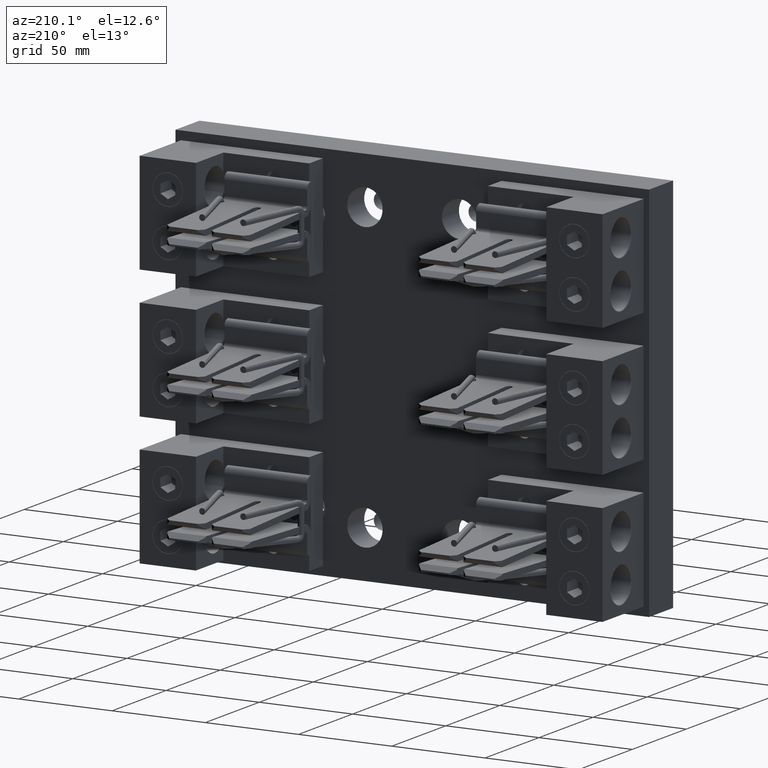
[diagram: clean part render]
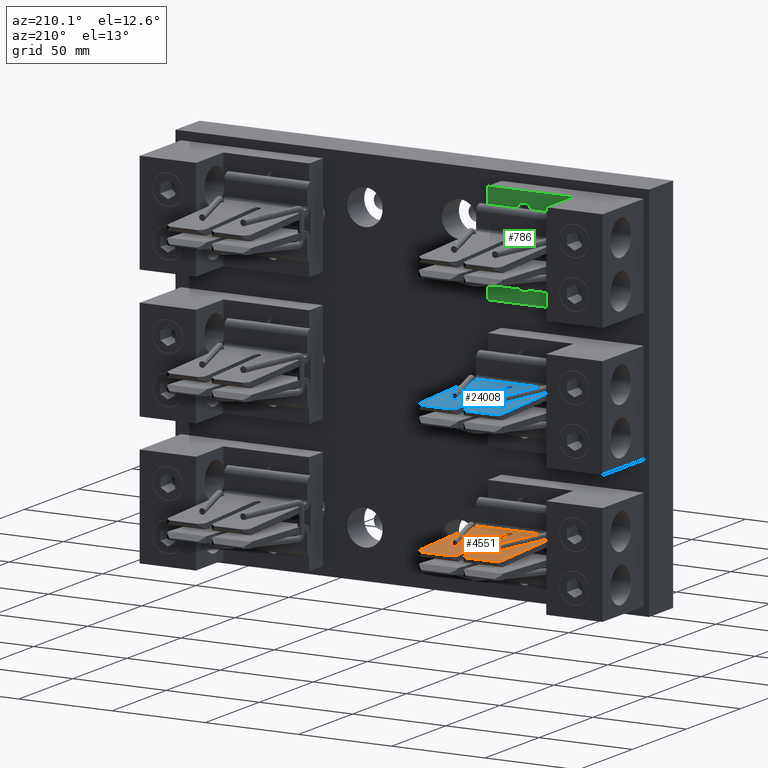
[diagram: same view with three faces highlighted in distinct colors, each labeled with its STEP entity id]
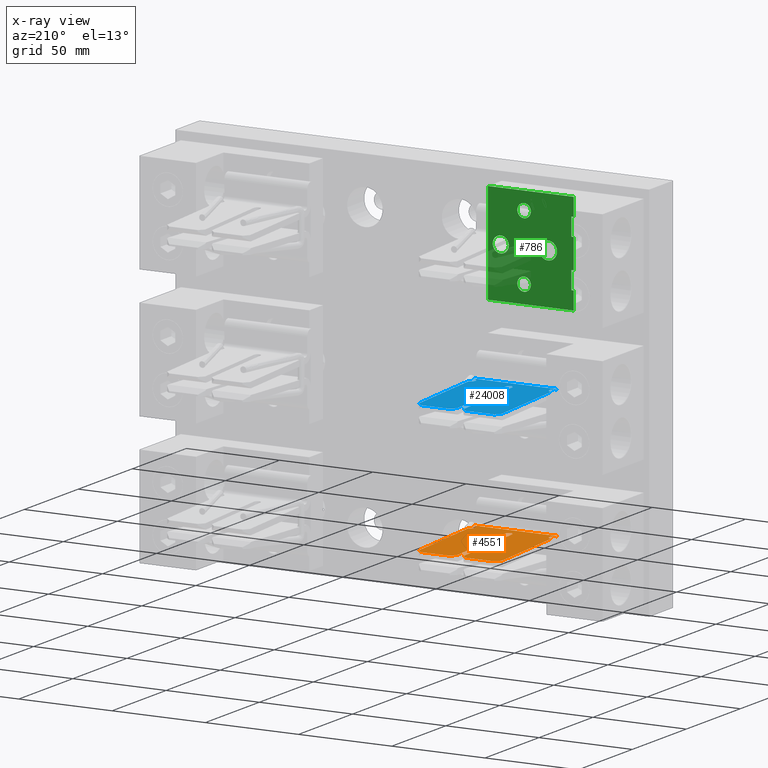
[diagram: x-ray of the same camera — body ghosted, the three highlighted faces saturated]
A machine part, auxiliary view with three faces highlighted in distinct colors.
The next image is the same camera in x-ray (body ghosted, the three faces saturated) — at least one of them is partly hidden behind the body in this view.
Their STEP definitions:

[orange] entity #4551 — the highlighted planar face has unit normal (0, -0.0353, -0.9994).
#245 = CARTESIAN_POINT ( 'NONE',  ( -2.589000000000000000, 1.940999999999998900, -2.501971949871025600 ) ) ;
#1052 = CARTESIAN_POINT ( 'NONE',  ( -1.783000000000000100, 1.717999999999998600, -2.494098468165789000 ) ) ;
#1670 = LINE ( 'NONE', #34000, #20389 ) ;
#2857 = VERTEX_POINT ( 'NONE', #13975 ) ;
#3214 = VECTOR ( 'NONE', #4346, 39.37007874015748900 ) ;
#3885 = DIRECTION ( 'NONE',  ( -0.7068865159459676300, -0.7068865159459634100, 0.02495810785192220000 ) ) ;
#3990 = CARTESIAN_POINT ( 'NONE',  ( -2.598957987920044800, 3.700042012079955100, -2.564078609516107700 ) ) ;
#4005 = VERTEX_POINT ( 'NONE', #31588 ) ;
#4346 = DIRECTION ( 'NONE',  ( 1.057645990178269900E-016, 0.9993772867383173800, -0.03528510665364423300 ) ) ;
#4431 = LINE ( 'NONE', #28275, #20753 ) ;
#4443 = CARTESIAN_POINT ( 'NONE',  ( -2.589000000000000000, 3.709999999999999500, -2.564430197120185700 ) ) ;
#4551 = ADVANCED_FACE ( 'NONE', ( #34755 ), #38266, .F. ) ;
#5030 = DIRECTION ( 'NONE',  ( -1.057645990178269900E-016, -0.9993772867383173800, 0.03528510665364423300 ) ) ;
#5163 = CARTESIAN_POINT ( 'NONE',  ( -3.532999999999999900, 1.905999999999999300, -2.500736201621324800 ) ) ;
#6257 = LINE ( 'NONE', #42943, #17320 ) ;
#6364 = ORIENTED_EDGE ( 'NONE', *, *, #17216, .F. ) ;
#6692 = ORIENTED_EDGE ( 'NONE', *, *, #13589, .T. ) ;
#6997 = DIRECTION ( 'NONE',  ( 1.000000000000000000, -1.045442921748446100E-016, 3.642919299551294900E-017 ) ) ;
#7356 = CARTESIAN_POINT ( 'NONE',  ( -3.532999999999999900, 1.685777038280819700, -2.492960769064513500 ) ) ;
#7755 = CARTESIAN_POINT ( 'NONE',  ( -2.826999999999999100, 3.809999999999999600, -2.567960906405045500 ) ) ;
#8280 = EDGE_LOOP ( 'NONE', ( #13249, #6692, #12503, #14906, #41181, #36066, #16482, #13754, #6364, #37327, #24131, #18209, #18637, #13642, #20983, #25361 ) ) ;
#8457 = VERTEX_POINT ( 'NONE', #22855 ) ;
#8875 = CARTESIAN_POINT ( 'NONE',  ( -1.782999999999999700, 3.809999999999999600, -2.567960906405045000 ) ) ;
#10125 = CARTESIAN_POINT ( 'NONE',  ( -2.727000000000000300, 3.710000000000000000, -2.564430197120185700 ) ) ;
#11027 = VECTOR ( 'NONE', #22438, 39.37007874015748900 ) ;
#11130 = VERTEX_POINT ( 'NONE', #19644 ) ;
#11261 = DIRECTION ( 'NONE',  ( -0.7068865159459645200, 0.7068865159459666300, -0.02495810785192235600 ) ) ;
#11654 = VERTEX_POINT ( 'NONE', #12465 ) ;
#11890 = LINE ( 'NONE', #25688, #39234 ) ;
#12465 = CARTESIAN_POINT ( 'NONE',  ( -1.882999999999999800, 3.809999999999999600, -2.567960906405045000 ) ) ;
#12503 = ORIENTED_EDGE ( 'NONE', *, *, #34283, .F. ) ;
#12642 = CARTESIAN_POINT ( 'NONE',  ( -1.971000000000000300, 1.717999999999999100, -2.494098468165789400 ) ) ;
#13198 = LINE ( 'NONE', #3990, #25239 ) ;
#13249 = ORIENTED_EDGE ( 'NONE', *, *, #31724, .T. ) ;
#13589 = EDGE_CURVE ( 'NONE', #35821, #11654, #17804, .T. ) ;
#13642 = ORIENTED_EDGE ( 'NONE', *, *, #35472, .T. ) ;
#13754 = ORIENTED_EDGE ( 'NONE', *, *, #37757, .T. ) ;
#13975 = CARTESIAN_POINT ( 'NONE',  ( -3.532999999999999900, 1.685777038280819700, -2.492960769064513500 ) ) ;
#14229 = EDGE_CURVE ( 'NONE', #32268, #16497, #13198, .T. ) ;
#14906 = ORIENTED_EDGE ( 'NONE', *, *, #14229, .T. ) ;
#14989 = VERTEX_POINT ( 'NONE', #33405 ) ;
#15064 = DIRECTION ( 'NONE',  ( -2.290156098585542100E-016, -0.9993772867383173800, 0.03528510665364424000 ) ) ;
#15632 = VECTOR ( 'NONE', #15897, 39.37007874015748100 ) ;
#15680 =( BOUNDED_CURVE ( )  B_SPLINE_CURVE ( 3, ( #30814, #34265, #43407, #43356 ),
 .UNSPECIFIED., .F., .F. ) 
 B_SPLINE_CURVE_WITH_KNOTS ( ( 4, 4 ),
 ( 0.0000000000000000000, 3.141592653589793100 ),
 .UNSPECIFIED. ) 
 CURVE ( )  GEOMETRIC_REPRESENTATION_ITEM ( )  RATIONAL_B_SPLINE_CURVE ( ( 1.000000000000000000, 0.3333333333333333700, 0.3333333333333333700, 1.000000000000000000 ) ) 
 REPRESENTATION_ITEM ( '' )  );
#15897 = DIRECTION ( 'NONE',  ( -0.7068865159459645200, 0.7068865159459667400, -0.02495810785192235900 ) ) ;
#15923 = CARTESIAN_POINT ( 'NONE',  ( -1.782999999999999700, 3.709999999999999100, -2.564430197120185700 ) ) ;
#16482 = ORIENTED_EDGE ( 'NONE', *, *, #43340, .T. ) ;
#16497 = VERTEX_POINT ( 'NONE', #4443 ) ;
#16547 = CARTESIAN_POINT ( 'NONE',  ( -1.882999999999999800, 3.809999999999999600, -2.567960906405045000 ) ) ;
#17023 = EDGE_CURVE ( 'NONE', #2857, #39173, #1670, .T. ) ;
#17216 = EDGE_CURVE ( 'NONE', #4005, #33303, #4431, .T. ) ;
#17320 = VECTOR ( 'NONE', #15064, 39.37007874015748100 ) ;
#17804 = LINE ( 'NONE', #16547, #15632 ) ;
#17824 = CARTESIAN_POINT ( 'NONE',  ( -3.540867345756414200, 3.702132654243584800, -2.564152424013092200 ) ) ;
#17982 = CARTESIAN_POINT ( 'NONE',  ( -3.532999999999999900, 1.717999999999999100, -2.494098468165789000 ) ) ;
#18209 = ORIENTED_EDGE ( 'NONE', *, *, #34417, .T. ) ;
#18637 = ORIENTED_EDGE ( 'NONE', *, *, #17023, .F. ) ;
#19187 = EDGE_CURVE ( 'NONE', #8457, #25247, #41096, .T. ) ;
#19644 = CARTESIAN_POINT ( 'NONE',  ( -1.783000000000000100, 1.685777038280819700, -2.492960769064513500 ) ) ;
#20075 = VERTEX_POINT ( 'NONE', #245 ) ;
#20389 = VECTOR ( 'NONE', #33634, 39.37007874015748900 ) ;
#20753 = VECTOR ( 'NONE', #29176, 39.37007874015748100 ) ;
#20983 = ORIENTED_EDGE ( 'NONE', *, *, #26128, .T. ) ;
#21387 = LINE ( 'NONE', #7356, #34030 ) ;
#22401 = CARTESIAN_POINT ( 'NONE',  ( -3.532999999999999900, 3.809999999999999600, -2.567960906405045500 ) ) ;
#22438 = DIRECTION ( 'NONE',  ( 1.057645990178269900E-016, 0.9993772867383173800, -0.03528510665364423300 ) ) ;
#22855 = CARTESIAN_POINT ( 'NONE',  ( -1.783000000000000100, 1.717999999999998600, -2.494098468165789000 ) ) ;
#23245 = LINE ( 'NONE', #22401, #11027 ) ;
#24131 = ORIENTED_EDGE ( 'NONE', *, *, #43404, .F. ) ;
#24439 = VERTEX_POINT ( 'NONE', #5163 ) ;
#24921 = VERTEX_POINT ( 'NONE', #10125 ) ;
#25098 = DIRECTION ( 'NONE',  ( 3.271765155450309700E-017, -0.03528510665364423300, -0.9993772867383173800 ) ) ;
#25239 = VECTOR ( 'NONE', #3885, 39.37007874015748900 ) ;
#25247 = VERTEX_POINT ( 'NONE', #43319 ) ;
#25361 = ORIENTED_EDGE ( 'NONE', *, *, #19187, .T. ) ;
#25372 = DIRECTION ( 'NONE',  ( -1.748641182290013800E-017, 0.9993772867383173800, -0.03528510665364424000 ) ) ;
#25655 = LINE ( 'NONE', #36147, #28345 ) ;
#25688 = CARTESIAN_POINT ( 'NONE',  ( -2.727000000000000300, 3.809999999999999600, -2.567960906405045500 ) ) ;
#26128 = EDGE_CURVE ( 'NONE', #11130, #8457, #30938, .T. ) ;
#26805 = CARTESIAN_POINT ( 'NONE',  ( -1.782999999999999700, 3.809999999999999600, -2.567960906405045000 ) ) ;
#26900 = DIRECTION ( 'NONE',  ( 1.057645990178269900E-016, 0.9993772867383173800, -0.03528510665364423300 ) ) ;
#26906 = CARTESIAN_POINT ( 'NONE',  ( -3.532999999999999900, 3.809999999999999600, -2.567960906405045500 ) ) ;
#27005 = EDGE_CURVE ( 'NONE', #16497, #20075, #6257, .T. ) ;
#27335 = CARTESIAN_POINT ( 'NONE',  ( -2.826999999999999100, 3.809999999999999600, -2.567960906405045500 ) ) ;
#28275 = CARTESIAN_POINT ( 'NONE',  ( -3.532999999999999900, 3.809999999999999600, -2.567960906405045500 ) ) ;
#28345 = VECTOR ( 'NONE', #41743, 39.37007874015748100 ) ;
#29176 = DIRECTION ( 'NONE',  ( 1.000000000000000000, -1.045442921748446100E-016, 3.642919299551294900E-017 ) ) ;
#29424 = CARTESIAN_POINT ( 'NONE',  ( -2.488999999999999000, 3.809999999999999600, -2.567960906405045000 ) ) ;
#29809 = LINE ( 'NONE', #8875, #3214 ) ;
#30309 = VECTOR ( 'NONE', #11261, 39.37007874015748900 ) ;
#30814 = CARTESIAN_POINT ( 'NONE',  ( -3.532999999999999900, 1.905999999999999300, -2.500736201621324800 ) ) ;
#30938 = LINE ( 'NONE', #26805, #31966 ) ;
#31324 = AXIS2_PLACEMENT_3D ( 'NONE', #26906, #25098, #5030 ) ;
#31588 = CARTESIAN_POINT ( 'NONE',  ( -3.432999999999998900, 3.809999999999999600, -2.567960906405045000 ) ) ;
#31724 = EDGE_CURVE ( 'NONE', #25247, #35821, #29809, .T. ) ;
#31966 = VECTOR ( 'NONE', #26900, 39.37007874015748900 ) ;
#32268 = VERTEX_POINT ( 'NONE', #29424 ) ;
#32874 = CARTESIAN_POINT ( 'NONE',  ( -2.726999999999999400, 1.940999999999998900, -2.501971949871025600 ) ) ;
#32926 = CARTESIAN_POINT ( 'NONE',  ( -2.726999999999999400, 1.802999999999999500, -2.497099571057919600 ) ) ;
#33288 = CARTESIAN_POINT ( 'NONE',  ( -2.589000000000000000, 1.802999999999999500, -2.497099571057919600 ) ) ;
#33303 = VERTEX_POINT ( 'NONE', #27335 ) ;
#33405 = CARTESIAN_POINT ( 'NONE',  ( -2.726999999999999400, 1.940999999999998900, -2.501971949871025600 ) ) ;
#33634 = DIRECTION ( 'NONE',  ( 1.057645990178269900E-016, 0.9993772867383173800, -0.03528510665364423300 ) ) ;
#34000 = CARTESIAN_POINT ( 'NONE',  ( -3.532999999999999900, 3.809999999999999600, -2.567960906405045500 ) ) ;
#34030 = VECTOR ( 'NONE', #6997, 39.37007874015748100 ) ;
#34265 = CARTESIAN_POINT ( 'NONE',  ( -3.344999999999999800, 1.905999999999999000, -2.500736201621324800 ) ) ;
#34283 = EDGE_CURVE ( 'NONE', #32268, #11654, #25655, .T. ) ;
#34417 = EDGE_CURVE ( 'NONE', #24439, #39173, #15680, .T. ) ;
#34712 = CARTESIAN_POINT ( 'NONE',  ( -2.589000000000000000, 1.940999999999998900, -2.501971949871025600 ) ) ;
#34755 = FACE_OUTER_BOUND ( 'NONE', #8280, .T. ) ;
#35472 = EDGE_CURVE ( 'NONE', #2857, #11130, #21387, .T. ) ;
#35821 = VERTEX_POINT ( 'NONE', #15923 ) ;
#36066 = ORIENTED_EDGE ( 'NONE', *, *, #41065, .T. ) ;
#36147 = CARTESIAN_POINT ( 'NONE',  ( -3.532999999999999900, 3.809999999999999600, -2.567960906405045500 ) ) ;
#36272 = CARTESIAN_POINT ( 'NONE',  ( -1.971000000000000300, 1.905999999999999000, -2.500736201621324800 ) ) ;
#36336 = DIRECTION ( 'NONE',  ( -0.7068865159459676300, -0.7068865159459634100, 0.02495810785192220000 ) ) ;
#37327 = ORIENTED_EDGE ( 'NONE', *, *, #41772, .T. ) ;
#37757 = EDGE_CURVE ( 'NONE', #24921, #33303, #41954, .T. ) ;
#38266 = PLANE ( 'NONE',  #31324 ) ;
#39173 = VERTEX_POINT ( 'NONE', #17982 ) ;
#39234 = VECTOR ( 'NONE', #25372, 39.37007874015748100 ) ;
#39739 = CARTESIAN_POINT ( 'NONE',  ( -3.532999999999999900, 3.710000000000000000, -2.564430197120185700 ) ) ;
#40625 = CARTESIAN_POINT ( 'NONE',  ( -1.783000000000000100, 1.905999999999999000, -2.500736201621324400 ) ) ;
#40778 =( BOUNDED_CURVE ( )  B_SPLINE_CURVE ( 3, ( #34712, #33288, #32926, #32874 ),
 .UNSPECIFIED., .F., .F. ) 
 B_SPLINE_CURVE_WITH_KNOTS ( ( 4, 4 ),
 ( 1.570796326794896600, 4.712388980384689700 ),
 .UNSPECIFIED. ) 
 CURVE ( )  GEOMETRIC_REPRESENTATION_ITEM ( )  RATIONAL_B_SPLINE_CURVE ( ( 1.000000000000000000, 0.3333333333333333700, 0.3333333333333333700, 1.000000000000000000 ) ) 
 REPRESENTATION_ITEM ( '' )  );
#41065 = EDGE_CURVE ( 'NONE', #20075, #14989, #40778, .T. ) ;
#41096 =( BOUNDED_CURVE ( )  B_SPLINE_CURVE ( 3, ( #1052, #12642, #36272, #40625 ),
 .UNSPECIFIED., .F., .T. ) 
 B_SPLINE_CURVE_WITH_KNOTS ( ( 4, 4 ),
 ( 3.141592653589793100, 6.283185307179586200 ),
 .UNSPECIFIED. ) 
 CURVE ( )  GEOMETRIC_REPRESENTATION_ITEM ( )  RATIONAL_B_SPLINE_CURVE ( ( 1.000000000000000000, 0.3333333333333333700, 0.3333333333333333700, 1.000000000000000000 ) ) 
 REPRESENTATION_ITEM ( '' )  );
#41181 = ORIENTED_EDGE ( 'NONE', *, *, #27005, .T. ) ;
#41537 = VECTOR ( 'NONE', #36336, 39.37007874015748900 ) ;
#41743 = DIRECTION ( 'NONE',  ( 1.000000000000000000, -1.045442921748446100E-016, 3.642919299551294900E-017 ) ) ;
#41772 = EDGE_CURVE ( 'NONE', #4005, #41783, #42396, .T. ) ;
#41783 = VERTEX_POINT ( 'NONE', #39739 ) ;
#41954 = LINE ( 'NONE', #7755, #30309 ) ;
#42396 = LINE ( 'NONE', #17824, #41537 ) ;
#42943 = CARTESIAN_POINT ( 'NONE',  ( -2.589000000000000000, 3.809999999999999600, -2.567960906405045500 ) ) ;
#43319 = CARTESIAN_POINT ( 'NONE',  ( -1.783000000000000100, 1.905999999999999000, -2.500736201621324400 ) ) ;
#43340 = EDGE_CURVE ( 'NONE', #14989, #24921, #11890, .T. ) ;
#43356 = CARTESIAN_POINT ( 'NONE',  ( -3.532999999999999900, 1.717999999999999100, -2.494098468165789000 ) ) ;
#43404 = EDGE_CURVE ( 'NONE', #24439, #41783, #23245, .T. ) ;
#43407 = CARTESIAN_POINT ( 'NONE',  ( -3.344999999999999800, 1.717999999999999500, -2.494098468165789400 ) ) ;

[blue] entity #24008 — the highlighted planar face has unit normal (0, -0.0353, -0.9994).
#626 = ORIENTED_EDGE ( 'NONE', *, *, #4752, .T. ) ;
#899 = CARTESIAN_POINT ( 'NONE',  ( -1.782999999999999700, 3.709999999999999100, 0.1855698028798141700 ) ) ;
#1550 = ORIENTED_EDGE ( 'NONE', *, *, #13455, .T. ) ;
#2288 = VECTOR ( 'NONE', #31416, 39.37007874015748100 ) ;
#2384 = DIRECTION ( 'NONE',  ( 1.057645990178269900E-016, 0.9993772867383173800, -0.03528510665364423300 ) ) ;
#2711 = VECTOR ( 'NONE', #2384, 39.37007874015748900 ) ;
#2821 = EDGE_CURVE ( 'NONE', #23342, #12853, #3496, .T. ) ;
#3470 = DIRECTION ( 'NONE',  ( 1.000000000000000000, -1.045442921748446100E-016, 3.642919299551294900E-017 ) ) ;
#3496 = LINE ( 'NONE', #20662, #33170 ) ;
#3690 = LINE ( 'NONE', #13430, #2711 ) ;
#3749 = CARTESIAN_POINT ( 'NONE',  ( -1.971000000000000300, 1.905999999999999000, 0.2492637983786751300 ) ) ;
#4189 = CARTESIAN_POINT ( 'NONE',  ( -3.532999999999999900, 1.905999999999999300, 0.2492637983786752100 ) ) ;
#4428 = CARTESIAN_POINT ( 'NONE',  ( -2.589000000000000000, 1.940999999999998900, 0.2480280501289742800 ) ) ;
#4466 = CARTESIAN_POINT ( 'NONE',  ( -1.783000000000000100, 1.905999999999999000, 0.2492637983786752400 ) ) ;
#4621 = LINE ( 'NONE', #19041, #7135 ) ;
#4752 = EDGE_CURVE ( 'NONE', #37328, #26794, #43092, .T. ) ;
#5166 = CARTESIAN_POINT ( 'NONE',  ( -2.826999999999999100, 3.809999999999999600, 0.1820390935949547400 ) ) ;
#5400 = CARTESIAN_POINT ( 'NONE',  ( -3.532999999999999900, 3.809999999999999600, 0.1820390935949547100 ) ) ;
#5773 = ORIENTED_EDGE ( 'NONE', *, *, #14872, .T. ) ;
#5814 = VECTOR ( 'NONE', #18426, 39.37007874015748100 ) ;
#5833 = EDGE_CURVE ( 'NONE', #22729, #40875, #18013, .T. ) ;
#5894 = LINE ( 'NONE', #5400, #13656 ) ;
#6739 = LINE ( 'NONE', #14763, #19227 ) ;
#7103 = CARTESIAN_POINT ( 'NONE',  ( -3.532999999999999900, 3.809999999999999600, 0.1820390935949547100 ) ) ;
#7135 = VECTOR ( 'NONE', #17185, 39.37007874015748900 ) ;
#7822 = VERTEX_POINT ( 'NONE', #30998 ) ;
#8416 = CARTESIAN_POINT ( 'NONE',  ( -1.783000000000000100, 1.717999999999998600, 0.2559015318342107700 ) ) ;
#8661 =( BOUNDED_CURVE ( )  B_SPLINE_CURVE ( 3, ( #23188, #32785, #3749, #15288 ),
 .UNSPECIFIED., .F., .T. ) 
 B_SPLINE_CURVE_WITH_KNOTS ( ( 4, 4 ),
 ( 3.141592653589793100, 6.283185307179586200 ),
 .UNSPECIFIED. ) 
 CURVE ( )  GEOMETRIC_REPRESENTATION_ITEM ( )  RATIONAL_B_SPLINE_CURVE ( ( 1.000000000000000000, 0.3333333333333333700, 0.3333333333333333700, 1.000000000000000000 ) ) 
 REPRESENTATION_ITEM ( '' )  );
#9009 = CARTESIAN_POINT ( 'NONE',  ( -2.589000000000000000, 3.709999999999999500, 0.1855698028798142600 ) ) ;
#9179 = DIRECTION ( 'NONE',  ( -0.7068865159459676300, -0.7068865159459634100, 0.02495810785192220000 ) ) ;
#10248 = CARTESIAN_POINT ( 'NONE',  ( -2.589000000000000000, 1.802999999999999500, 0.2529004289420800400 ) ) ;
#10277 = VERTEX_POINT ( 'NONE', #11794 ) ;
#10523 =( BOUNDED_CURVE ( )  B_SPLINE_CURVE ( 3, ( #4428, #10248, #16751, #18457 ),
 .UNSPECIFIED., .F., .T. ) 
 B_SPLINE_CURVE_WITH_KNOTS ( ( 4, 4 ),
 ( 1.570796326794896600, 4.712388980384689700 ),
 .UNSPECIFIED. ) 
 CURVE ( )  GEOMETRIC_REPRESENTATION_ITEM ( )  RATIONAL_B_SPLINE_CURVE ( ( 1.000000000000000000, 0.3333333333333333700, 0.3333333333333333700, 1.000000000000000000 ) ) 
 REPRESENTATION_ITEM ( '' )  );
#11227 = VERTEX_POINT ( 'NONE', #4189 ) ;
#11428 = LINE ( 'NONE', #7103, #14110 ) ;
#11794 = CARTESIAN_POINT ( 'NONE',  ( -2.727000000000000300, 3.710000000000000000, 0.1855698028798142300 ) ) ;
#11884 = DIRECTION ( 'NONE',  ( 1.057645990178269900E-016, 0.9993772867383173800, -0.03528510665364423300 ) ) ;
#12267 = LINE ( 'NONE', #28790, #16079 ) ;
#12830 = CARTESIAN_POINT ( 'NONE',  ( -3.532999999999999900, 1.685777038280819700, 0.2570392309354861400 ) ) ;
#12853 = VERTEX_POINT ( 'NONE', #26951 ) ;
#12966 = ORIENTED_EDGE ( 'NONE', *, *, #27642, .T. ) ;
#13262 = LINE ( 'NONE', #34788, #22311 ) ;
#13330 = EDGE_CURVE ( 'NONE', #7822, #22729, #40914, .T. ) ;
#13430 = CARTESIAN_POINT ( 'NONE',  ( -3.532999999999999900, 3.809999999999999600, 0.1820390935949547100 ) ) ;
#13455 = EDGE_CURVE ( 'NONE', #11227, #43303, #17611, .T. ) ;
#13656 = VECTOR ( 'NONE', #3470, 39.37007874015748100 ) ;
#14110 = VECTOR ( 'NONE', #19577, 39.37007874015748900 ) ;
#14402 = ORIENTED_EDGE ( 'NONE', *, *, #36316, .T. ) ;
#14763 = CARTESIAN_POINT ( 'NONE',  ( -1.782999999999999700, 3.809999999999999600, 0.1820390935949547700 ) ) ;
#14872 = EDGE_CURVE ( 'NONE', #12853, #17794, #32394, .T. ) ;
#14942 = EDGE_CURVE ( 'NONE', #37328, #16450, #13262, .T. ) ;
#15160 = ORIENTED_EDGE ( 'NONE', *, *, #31726, .F. ) ;
#15288 = CARTESIAN_POINT ( 'NONE',  ( -1.783000000000000100, 1.905999999999999000, 0.2492637983786752400 ) ) ;
#15626 = ORIENTED_EDGE ( 'NONE', *, *, #5833, .T. ) ;
#15685 = CARTESIAN_POINT ( 'NONE',  ( -3.432999999999998900, 3.809999999999999600, 0.1820390935949547700 ) ) ;
#16079 = VECTOR ( 'NONE', #23799, 39.37007874015748100 ) ;
#16450 = VERTEX_POINT ( 'NONE', #5166 ) ;
#16634 = VERTEX_POINT ( 'NONE', #899 ) ;
#16751 = CARTESIAN_POINT ( 'NONE',  ( -2.726999999999999400, 1.802999999999999500, 0.2529004289420800400 ) ) ;
#17185 = DIRECTION ( 'NONE',  ( -0.7068865159459645200, 0.7068865159459666300, -0.02495810785192235600 ) ) ;
#17611 =( BOUNDED_CURVE ( )  B_SPLINE_CURVE ( 3, ( #19596, #19393, #18831, #18724 ),
 .UNSPECIFIED., .F., .T. ) 
 B_SPLINE_CURVE_WITH_KNOTS ( ( 4, 4 ),
 ( 0.0000000000000000000, 3.141592653589793100 ),
 .UNSPECIFIED. ) 
 CURVE ( )  GEOMETRIC_REPRESENTATION_ITEM ( )  RATIONAL_B_SPLINE_CURVE ( ( 1.000000000000000000, 0.3333333333333333700, 0.3333333333333333700, 1.000000000000000000 ) ) 
 REPRESENTATION_ITEM ( '' )  );
#17794 = VERTEX_POINT ( 'NONE', #8416 ) ;
#17911 = FACE_OUTER_BOUND ( 'NONE', #36908, .T. ) ;
#18013 = LINE ( 'NONE', #31564, #2288 ) ;
#18426 = DIRECTION ( 'NONE',  ( -1.748641182290013800E-017, 0.9993772867383173800, -0.03528510665364424000 ) ) ;
#18457 = CARTESIAN_POINT ( 'NONE',  ( -2.726999999999999400, 1.940999999999998900, 0.2480280501289742800 ) ) ;
#18615 = CARTESIAN_POINT ( 'NONE',  ( -2.727000000000000300, 3.809999999999999600, 0.1820390935949547400 ) ) ;
#18724 = CARTESIAN_POINT ( 'NONE',  ( -3.532999999999999900, 1.717999999999999100, 0.2559015318342106600 ) ) ;
#18821 = ORIENTED_EDGE ( 'NONE', *, *, #32631, .T. ) ;
#18831 = CARTESIAN_POINT ( 'NONE',  ( -3.344999999999999800, 1.717999999999999500, 0.2559015318342103800 ) ) ;
#19041 = CARTESIAN_POINT ( 'NONE',  ( -2.826999999999999100, 3.809999999999999600, 0.1820390935949547400 ) ) ;
#19114 = EDGE_CURVE ( 'NONE', #17794, #20914, #8661, .T. ) ;
#19227 = VECTOR ( 'NONE', #39184, 39.37007874015748900 ) ;
#19393 = CARTESIAN_POINT ( 'NONE',  ( -3.344999999999999800, 1.905999999999999000, 0.2492637983786750400 ) ) ;
#19577 = DIRECTION ( 'NONE',  ( 1.057645990178269900E-016, 0.9993772867383173800, -0.03528510665364423300 ) ) ;
#19596 = CARTESIAN_POINT ( 'NONE',  ( -3.532999999999999900, 1.905999999999999300, 0.2492637983786752100 ) ) ;
#19841 = ORIENTED_EDGE ( 'NONE', *, *, #2821, .T. ) ;
#20662 = CARTESIAN_POINT ( 'NONE',  ( -3.532999999999999900, 1.685777038280819700, 0.2570392309354861400 ) ) ;
#20695 = VERTEX_POINT ( 'NONE', #27096 ) ;
#20914 = VERTEX_POINT ( 'NONE', #4466 ) ;
#22311 = VECTOR ( 'NONE', #34108, 39.37007874015748100 ) ;
#22729 = VERTEX_POINT ( 'NONE', #9009 ) ;
#23034 = DIRECTION ( 'NONE',  ( 1.000000000000000000, -1.045442921748446100E-016, 3.642919299551294900E-017 ) ) ;
#23188 = CARTESIAN_POINT ( 'NONE',  ( -1.783000000000000100, 1.717999999999998600, 0.2559015318342107700 ) ) ;
#23238 = CARTESIAN_POINT ( 'NONE',  ( -2.598957987920044800, 3.700042012079955100, 0.1859213904838924700 ) ) ;
#23300 = DIRECTION ( 'NONE',  ( -0.7068865159459676300, -0.7068865159459634100, 0.02495810785192220000 ) ) ;
#23342 = VERTEX_POINT ( 'NONE', #12830 ) ;
#23799 = DIRECTION ( 'NONE',  ( -0.7068865159459645200, 0.7068865159459667400, -0.02495810785192235900 ) ) ;
#23859 = ORIENTED_EDGE ( 'NONE', *, *, #31848, .F. ) ;
#24008 = ADVANCED_FACE ( 'NONE', ( #17911 ), #35585, .F. ) ;
#25236 = CARTESIAN_POINT ( 'NONE',  ( -2.726999999999999400, 1.940999999999998900, 0.2480280501289742800 ) ) ;
#25976 = LINE ( 'NONE', #18615, #5814 ) ;
#26498 = ORIENTED_EDGE ( 'NONE', *, *, #14942, .F. ) ;
#26602 = VECTOR ( 'NONE', #11884, 39.37007874015748900 ) ;
#26794 = VERTEX_POINT ( 'NONE', #39862 ) ;
#26916 = CARTESIAN_POINT ( 'NONE',  ( -3.532999999999999900, 1.717999999999999100, 0.2559015318342106600 ) ) ;
#26951 = CARTESIAN_POINT ( 'NONE',  ( -1.783000000000000100, 1.685777038280819700, 0.2570392309354863100 ) ) ;
#27096 = CARTESIAN_POINT ( 'NONE',  ( -1.882999999999999800, 3.809999999999999600, 0.1820390935949547700 ) ) ;
#27642 = EDGE_CURVE ( 'NONE', #34189, #10277, #25976, .T. ) ;
#28790 = CARTESIAN_POINT ( 'NONE',  ( -1.882999999999999800, 3.809999999999999600, 0.1820390935949547700 ) ) ;
#29272 = ORIENTED_EDGE ( 'NONE', *, *, #19114, .T. ) ;
#30998 = CARTESIAN_POINT ( 'NONE',  ( -2.488999999999999000, 3.809999999999999600, 0.1820390935949547700 ) ) ;
#31416 = DIRECTION ( 'NONE',  ( -2.290156098585542100E-016, -0.9993772867383173800, 0.03528510665364424000 ) ) ;
#31564 = CARTESIAN_POINT ( 'NONE',  ( -2.589000000000000000, 3.809999999999999600, 0.1820390935949547400 ) ) ;
#31726 = EDGE_CURVE ( 'NONE', #7822, #20695, #5894, .T. ) ;
#31848 = EDGE_CURVE ( 'NONE', #23342, #43303, #11428, .T. ) ;
#32394 = LINE ( 'NONE', #34846, #26602 ) ;
#32631 = EDGE_CURVE ( 'NONE', #20914, #16634, #6739, .T. ) ;
#32785 = CARTESIAN_POINT ( 'NONE',  ( -1.971000000000000300, 1.717999999999999100, 0.2559015318342104900 ) ) ;
#33170 = VECTOR ( 'NONE', #23034, 39.37007874015748100 ) ;
#33971 = CARTESIAN_POINT ( 'NONE',  ( -3.540867345756414200, 3.702132654243584800, 0.1858475759869078500 ) ) ;
#34108 = DIRECTION ( 'NONE',  ( 1.000000000000000000, -1.045442921748446100E-016, 3.642919299551294900E-017 ) ) ;
#34189 = VERTEX_POINT ( 'NONE', #25236 ) ;
#34403 = DIRECTION ( 'NONE',  ( -1.057645990178269900E-016, -0.9993772867383173800, 0.03528510665364423300 ) ) ;
#34547 = DIRECTION ( 'NONE',  ( 3.271765155450309700E-017, -0.03528510665364423300, -0.9993772867383173800 ) ) ;
#34581 = VECTOR ( 'NONE', #23300, 39.37007874015748900 ) ;
#34699 = CARTESIAN_POINT ( 'NONE',  ( -3.532999999999999900, 3.809999999999999600, 0.1820390935949547100 ) ) ;
#34788 = CARTESIAN_POINT ( 'NONE',  ( -3.532999999999999900, 3.809999999999999600, 0.1820390935949547100 ) ) ;
#34846 = CARTESIAN_POINT ( 'NONE',  ( -1.782999999999999700, 3.809999999999999600, 0.1820390935949547700 ) ) ;
#35141 = ORIENTED_EDGE ( 'NONE', *, *, #38076, .F. ) ;
#35368 = ORIENTED_EDGE ( 'NONE', *, *, #42894, .T. ) ;
#35585 = PLANE ( 'NONE',  #41752 ) ;
#36316 = EDGE_CURVE ( 'NONE', #16634, #20695, #12267, .T. ) ;
#36908 = EDGE_LOOP ( 'NONE', ( #18821, #14402, #15160, #41030, #15626, #38868, #12966, #35368, #26498, #626, #35141, #1550, #23859, #19841, #5773, #29272 ) ) ;
#37328 = VERTEX_POINT ( 'NONE', #15685 ) ;
#37963 = EDGE_CURVE ( 'NONE', #40875, #34189, #10523, .T. ) ;
#38076 = EDGE_CURVE ( 'NONE', #11227, #26794, #3690, .T. ) ;
#38868 = ORIENTED_EDGE ( 'NONE', *, *, #37963, .T. ) ;
#39184 = DIRECTION ( 'NONE',  ( 1.057645990178269900E-016, 0.9993772867383173800, -0.03528510665364423300 ) ) ;
#39862 = CARTESIAN_POINT ( 'NONE',  ( -3.532999999999999900, 3.710000000000000000, 0.1855698028798140900 ) ) ;
#40875 = VERTEX_POINT ( 'NONE', #42056 ) ;
#40914 = LINE ( 'NONE', #23238, #34581 ) ;
#41030 = ORIENTED_EDGE ( 'NONE', *, *, #13330, .T. ) ;
#41752 = AXIS2_PLACEMENT_3D ( 'NONE', #34699, #34547, #34403 ) ;
#42056 = CARTESIAN_POINT ( 'NONE',  ( -2.589000000000000000, 1.940999999999998900, 0.2480280501289742800 ) ) ;
#42377 = VECTOR ( 'NONE', #9179, 39.37007874015748900 ) ;
#42894 = EDGE_CURVE ( 'NONE', #10277, #16450, #4621, .T. ) ;
#43092 = LINE ( 'NONE', #33971, #42377 ) ;
#43303 = VERTEX_POINT ( 'NONE', #26916 ) ;

[green] entity #786 — the highlighted planar face has unit normal (-0, -1, -0).
#115 = FACE_BOUND ( 'NONE', #37260, .T. ) ;
#196 = CIRCLE ( 'NONE', #7101, 0.04999999999999973900 ) ;
#207 = CARTESIAN_POINT ( 'NONE',  ( -3.648000000000000600, 1.375000000000000000, 3.437082869338697200 ) ) ;
#742 = ORIENTED_EDGE ( 'NONE', *, *, #39979, .T. ) ;
#786 = ADVANCED_FACE ( 'NONE', ( #21299, #17036, #7462, #115, #39253, #13628 ), #9349, .F. ) ;
#1424 = VERTEX_POINT ( 'NONE', #23059 ) ;
#2572 = VECTOR ( 'NONE', #25951, 39.37007874015748100 ) ;
#3042 = ORIENTED_EDGE ( 'NONE', *, *, #15404, .F. ) ;
#3123 = VERTEX_POINT ( 'NONE', #43494 ) ;
#3178 = DIRECTION ( 'NONE',  ( -1.110223024625156300E-016, -1.612587646349660100E-016, 1.000000000000000000 ) ) ;
#3640 = LINE ( 'NONE', #36640, #26093 ) ;
#3823 = CARTESIAN_POINT ( 'NONE',  ( -3.648000000000001000, 1.374999999999999800, 3.814999999999999900 ) ) ;
#4361 = ORIENTED_EDGE ( 'NONE', *, *, #22996, .T. ) ;
#4962 = VECTOR ( 'NONE', #8504, 39.37007874015748100 ) ;
#4964 = DIRECTION ( 'NONE',  ( -1.117441600941660900E-016, -1.000000000000000000, -1.612587646349660600E-016 ) ) ;
#4971 = CARTESIAN_POINT ( 'NONE',  ( -2.650000000000000400, 1.375000000000000000, 2.061999999999999800 ) ) ;
#5712 = VERTEX_POINT ( 'NONE', #34513 ) ;
#6351 = ORIENTED_EDGE ( 'NONE', *, *, #29578, .T. ) ;
#6926 = DIRECTION ( 'NONE',  ( 1.000000000000000000, 0.0000000000000000000, 0.0000000000000000000 ) ) ;
#6943 = LINE ( 'NONE', #30261, #35288 ) ;
#7101 = AXIS2_PLACEMENT_3D ( 'NONE', #17403, #24542, #7762 ) ;
#7387 = VERTEX_POINT ( 'NONE', #37255 ) ;
#7462 = FACE_BOUND ( 'NONE', #18815, .T. ) ;
#7502 = VERTEX_POINT ( 'NONE', #207 ) ;
#7762 = DIRECTION ( 'NONE',  ( -1.000000000000000000, 0.0000000000000000000, 0.0000000000000000000 ) ) ;
#7854 = DIRECTION ( 'NONE',  ( -1.000000000000000000, 1.117441600941660900E-016, -1.110223024625156300E-016 ) ) ;
#8267 = CARTESIAN_POINT ( 'NONE',  ( -3.698000000000000400, 1.374999999999999800, 3.814999999999999900 ) ) ;
#8329 = AXIS2_PLACEMENT_3D ( 'NONE', #8571, #8518, #8479 ) ;
#8479 = DIRECTION ( 'NONE',  ( 1.000000000000000000, -1.117441600941661100E-016, 1.110223024625156300E-016 ) ) ;
#8504 = DIRECTION ( 'NONE',  ( -1.000000000000000000, 1.117441600941660900E-016, -1.110223024625156300E-016 ) ) ;
#8518 = DIRECTION ( 'NONE',  ( -1.117441600941660900E-016, -1.000000000000000000, -1.612587646349660600E-016 ) ) ;
#8571 = CARTESIAN_POINT ( 'NONE',  ( -3.698000000000000400, 1.374999999999999800, 3.814999999999999900 ) ) ;
#9174 = CARTESIAN_POINT ( 'NONE',  ( -2.700000000000000200, 1.374999999999999800, 2.750000000000000000 ) ) ;
#9349 = PLANE ( 'NONE',  #8329 ) ;
#10795 = CARTESIAN_POINT ( 'NONE',  ( -1.886000000000000100, 1.375000000000000000, 1.684999999999999600 ) ) ;
#11145 = CIRCLE ( 'NONE', #24893, 0.1430000000000001000 ) ;
#11275 = VERTEX_POINT ( 'NONE', #17633 ) ;
#11491 = EDGE_CURVE ( 'NONE', #3123, #3123, #11145, .T. ) ;
#11764 = VECTOR ( 'NONE', #32660, 39.37007874015748100 ) ;
#11807 = EDGE_CURVE ( 'NONE', #7387, #43557, #33327, .T. ) ;
#11987 = ORIENTED_EDGE ( 'NONE', *, *, #42092, .F. ) ;
#12205 = ORIENTED_EDGE ( 'NONE', *, *, #11807, .T. ) ;
#12212 = LINE ( 'NONE', #32511, #11764 ) ;
#12452 = CARTESIAN_POINT ( 'NONE',  ( -4.886000000000001000, 1.375000000000000000, 3.062917130661303200 ) ) ;
#12659 = EDGE_CURVE ( 'NONE', #27756, #27756, #26552, .T. ) ;
#13295 = VERTEX_POINT ( 'NONE', #23818 ) ;
#13388 = VECTOR ( 'NONE', #25407, 39.37007874015748100 ) ;
#13550 = EDGE_LOOP ( 'NONE', ( #26972 ) ) ;
#13628 = FACE_OUTER_BOUND ( 'NONE', #41045, .T. ) ;
#13934 = VERTEX_POINT ( 'NONE', #41436 ) ;
#14367 = CIRCLE ( 'NONE', #17672, 0.1430000000000001000 ) ;
#14698 = DIRECTION ( 'NONE',  ( 1.000000000000000000, 0.0000000000000000000, 0.0000000000000000000 ) ) ;
#14777 = VECTOR ( 'NONE', #22126, 39.37007874015748100 ) ;
#14789 = DIRECTION ( 'NONE',  ( -1.117441600941660900E-016, -1.000000000000000000, -1.612587646349660600E-016 ) ) ;
#14848 = CARTESIAN_POINT ( 'NONE',  ( -2.650000000000000400, 1.374999999999999800, 3.437999999999999700 ) ) ;
#14923 = LINE ( 'NONE', #26674, #13388 ) ;
#15404 = EDGE_CURVE ( 'NONE', #7387, #27816, #39051, .T. ) ;
#16161 = AXIS2_PLACEMENT_3D ( 'NONE', #22913, #35471, #36511 ) ;
#16442 = EDGE_CURVE ( 'NONE', #13934, #13934, #14367, .T. ) ;
#16562 = EDGE_CURVE ( 'NONE', #11275, #31466, #42314, .T. ) ;
#17036 = FACE_BOUND ( 'NONE', #37538, .T. ) ;
#17403 = CARTESIAN_POINT ( 'NONE',  ( -2.650000000000000400, 1.374999999999999800, 2.750000000000000000 ) ) ;
#17437 = ORIENTED_EDGE ( 'NONE', *, *, #16442, .T. ) ;
#17484 = EDGE_CURVE ( 'NONE', #33824, #33824, #40322, .T. ) ;
#17506 = VECTOR ( 'NONE', #7854, 39.37007874015748100 ) ;
#17633 = CARTESIAN_POINT ( 'NONE',  ( -3.648000000000000600, 1.375000000000000000, 2.062917130661303200 ) ) ;
#17672 = AXIS2_PLACEMENT_3D ( 'NONE', #4971, #4964, #6926 ) ;
#18326 = DIRECTION ( 'NONE',  ( -1.000000000000000000, 0.0000000000000000000, 0.0000000000000000000 ) ) ;
#18381 = ORIENTED_EDGE ( 'NONE', *, *, #33949, .F. ) ;
#18382 = DIRECTION ( 'NONE',  ( 1.117441600941660900E-016, 1.000000000000000000, 1.612587646349660600E-016 ) ) ;
#18438 = CARTESIAN_POINT ( 'NONE',  ( -2.157999999999999900, 1.374999999999999800, 2.750000000000000000 ) ) ;
#18815 = EDGE_LOOP ( 'NONE', ( #27202 ) ) ;
#20269 = EDGE_CURVE ( 'NONE', #43557, #1424, #6943, .T. ) ;
#20275 = ORIENTED_EDGE ( 'NONE', *, *, #41834, .T. ) ;
#20645 = CARTESIAN_POINT ( 'NONE',  ( -3.648000000000001000, 1.374999999999999800, 3.814999999999999900 ) ) ;
#20996 = LINE ( 'NONE', #29845, #14777 ) ;
#21299 = FACE_BOUND ( 'NONE', #27121, .T. ) ;
#21799 = EDGE_CURVE ( 'NONE', #25762, #13295, #3640, .T. ) ;
#22126 = DIRECTION ( 'NONE',  ( 1.110223024625156300E-016, 1.612587646349660100E-016, -1.000000000000000000 ) ) ;
#22440 = ORIENTED_EDGE ( 'NONE', *, *, #11491, .T. ) ;
#22902 = CARTESIAN_POINT ( 'NONE',  ( -2.327499999999999700, 1.374999999999999800, 2.750000000000000000 ) ) ;
#22907 = AXIS2_PLACEMENT_3D ( 'NONE', #18438, #18382, #18326 ) ;
#22913 = CARTESIAN_POINT ( 'NONE',  ( -3.158000000000000400, 1.375000000000000000, 2.750000000000000000 ) ) ;
#22996 = EDGE_CURVE ( 'NONE', #27873, #7502, #34688, .T. ) ;
#23059 = CARTESIAN_POINT ( 'NONE',  ( -3.698000000000000400, 1.375000000000000000, 1.684999999999999600 ) ) ;
#23747 = VERTEX_POINT ( 'NONE', #9174 ) ;
#23814 = CARTESIAN_POINT ( 'NONE',  ( -3.698000000000000400, 1.374999999999999800, 3.814999999999999900 ) ) ;
#23818 = CARTESIAN_POINT ( 'NONE',  ( -3.698000000000000400, 1.375000000000000000, 2.437082869338696800 ) ) ;
#23936 = VECTOR ( 'NONE', #35454, 39.37007874015748100 ) ;
#24542 = DIRECTION ( 'NONE',  ( -7.979975061354940800E-016, 1.000000000000000000, 1.612587646349659600E-016 ) ) ;
#24893 = AXIS2_PLACEMENT_3D ( 'NONE', #14848, #14789, #14698 ) ;
#25051 = ORIENTED_EDGE ( 'NONE', *, *, #25524, .T. ) ;
#25161 = LINE ( 'NONE', #41841, #34077 ) ;
#25407 = DIRECTION ( 'NONE',  ( 1.110223024625156300E-016, 1.612587646349660100E-016, -1.000000000000000000 ) ) ;
#25409 = ORIENTED_EDGE ( 'NONE', *, *, #12659, .F. ) ;
#25524 = EDGE_CURVE ( 'NONE', #7502, #5712, #25161, .T. ) ;
#25762 = VERTEX_POINT ( 'NONE', #34840 ) ;
#25951 = DIRECTION ( 'NONE',  ( -1.110223024625156300E-016, -1.612587646349660100E-016, 1.000000000000000000 ) ) ;
#25957 = ORIENTED_EDGE ( 'NONE', *, *, #20269, .T. ) ;
#26093 = VECTOR ( 'NONE', #40916, 39.37007874015748100 ) ;
#26552 = CIRCLE ( 'NONE', #16161, 0.1884999999999993600 ) ;
#26622 = CARTESIAN_POINT ( 'NONE',  ( -3.346499999999999800, 1.375000000000000000, 2.750000000000000000 ) ) ;
#26628 = LINE ( 'NONE', #32702, #17506 ) ;
#26674 = CARTESIAN_POINT ( 'NONE',  ( -3.698000000000000400, 1.374999999999999800, 3.814999999999999900 ) ) ;
#26972 = ORIENTED_EDGE ( 'NONE', *, *, #17484, .F. ) ;
#27121 = EDGE_LOOP ( 'NONE', ( #17437 ) ) ;
#27202 = ORIENTED_EDGE ( 'NONE', *, *, #36323, .F. ) ;
#27523 = VECTOR ( 'NONE', #3178, 39.37007874015748100 ) ;
#27756 = VERTEX_POINT ( 'NONE', #26622 ) ;
#27816 = VERTEX_POINT ( 'NONE', #8267 ) ;
#27873 = VERTEX_POINT ( 'NONE', #38585 ) ;
#29578 = EDGE_CURVE ( 'NONE', #31018, #11275, #12212, .T. ) ;
#29845 = CARTESIAN_POINT ( 'NONE',  ( -3.698000000000000400, 1.374999999999999800, 3.814999999999999900 ) ) ;
#30261 = CARTESIAN_POINT ( 'NONE',  ( -3.698000000000000400, 1.375000000000000000, 1.684999999999999600 ) ) ;
#31018 = VERTEX_POINT ( 'NONE', #38336 ) ;
#31228 = CARTESIAN_POINT ( 'NONE',  ( -3.648000000000000600, 1.375000000000000000, 2.437082869338696800 ) ) ;
#31466 = VERTEX_POINT ( 'NONE', #31228 ) ;
#32511 = CARTESIAN_POINT ( 'NONE',  ( -4.886000000000001000, 1.375000000000000000, 2.062917130661302800 ) ) ;
#32660 = DIRECTION ( 'NONE',  ( 1.000000000000000000, -1.117441600941660900E-016, 1.110223024625156300E-016 ) ) ;
#32702 = CARTESIAN_POINT ( 'NONE',  ( -4.886000000000001000, 1.375000000000000000, 2.437082869338696800 ) ) ;
#33327 = LINE ( 'NONE', #41915, #23936 ) ;
#33824 = VERTEX_POINT ( 'NONE', #22902 ) ;
#33949 = EDGE_CURVE ( 'NONE', #27816, #5712, #20996, .T. ) ;
#34077 = VECTOR ( 'NONE', #41703, 39.37007874015748100 ) ;
#34513 = CARTESIAN_POINT ( 'NONE',  ( -3.698000000000000400, 1.374999999999999800, 3.437082869338697200 ) ) ;
#34688 = LINE ( 'NONE', #20645, #2572 ) ;
#34840 = CARTESIAN_POINT ( 'NONE',  ( -3.698000000000000400, 1.375000000000000000, 3.062917130661303200 ) ) ;
#34983 = VECTOR ( 'NONE', #36694, 39.37007874015748100 ) ;
#35288 = VECTOR ( 'NONE', #38040, 39.37007874015748100 ) ;
#35454 = DIRECTION ( 'NONE',  ( 1.110223024625156300E-016, 1.612587646349660100E-016, -1.000000000000000000 ) ) ;
#35471 = DIRECTION ( 'NONE',  ( 1.117441600941660900E-016, 1.000000000000000000, 1.612587646349660600E-016 ) ) ;
#36323 = EDGE_CURVE ( 'NONE', #23747, #23747, #196, .T. ) ;
#36511 = DIRECTION ( 'NONE',  ( -1.000000000000000000, 0.0000000000000000000, 0.0000000000000000000 ) ) ;
#36640 = CARTESIAN_POINT ( 'NONE',  ( -3.698000000000000400, 1.374999999999999800, 3.814999999999999900 ) ) ;
#36694 = DIRECTION ( 'NONE',  ( 1.000000000000000000, -1.117441600941660900E-016, 1.110223024625156300E-016 ) ) ;
#37255 = CARTESIAN_POINT ( 'NONE',  ( -1.886000000000000300, 1.374999999999999300, 3.814999999999999900 ) ) ;
#37260 = EDGE_LOOP ( 'NONE', ( #25409 ) ) ;
#37538 = EDGE_LOOP ( 'NONE', ( #22440 ) ) ;
#37771 = LINE ( 'NONE', #12452, #34983 ) ;
#38040 = DIRECTION ( 'NONE',  ( -1.000000000000000000, 1.117441600941660900E-016, -1.110223024625156300E-016 ) ) ;
#38336 = CARTESIAN_POINT ( 'NONE',  ( -3.697999999999999500, 1.375000000000000000, 2.062917130661302800 ) ) ;
#38585 = CARTESIAN_POINT ( 'NONE',  ( -3.648000000000000600, 1.375000000000000000, 3.062917130661303200 ) ) ;
#39051 = LINE ( 'NONE', #23814, #4962 ) ;
#39253 = FACE_BOUND ( 'NONE', #13550, .T. ) ;
#39619 = ORIENTED_EDGE ( 'NONE', *, *, #16562, .T. ) ;
#39979 = EDGE_CURVE ( 'NONE', #31466, #13295, #26628, .T. ) ;
#40322 = CIRCLE ( 'NONE', #22907, 0.1694999999999996500 ) ;
#40916 = DIRECTION ( 'NONE',  ( 1.110223024625156300E-016, 1.612587646349660100E-016, -1.000000000000000000 ) ) ;
#41045 = EDGE_LOOP ( 'NONE', ( #39619, #742, #42163, #20275, #4361, #25051, #18381, #3042, #12205, #25957, #11987, #6351 ) ) ;
#41436 = CARTESIAN_POINT ( 'NONE',  ( -2.507000000000000100, 1.375000000000000000, 2.061999999999999800 ) ) ;
#41703 = DIRECTION ( 'NONE',  ( -1.000000000000000000, 1.117441600941660900E-016, -1.110223024625156300E-016 ) ) ;
#41834 = EDGE_CURVE ( 'NONE', #25762, #27873, #37771, .T. ) ;
#41841 = CARTESIAN_POINT ( 'NONE',  ( -4.886000000000001000, 1.375000000000000000, 3.437082869338697200 ) ) ;
#41915 = CARTESIAN_POINT ( 'NONE',  ( -1.886000000000000300, 1.374999999999999300, 3.814999999999999900 ) ) ;
#42092 = EDGE_CURVE ( 'NONE', #31018, #1424, #14923, .T. ) ;
#42163 = ORIENTED_EDGE ( 'NONE', *, *, #21799, .F. ) ;
#42314 = LINE ( 'NONE', #3823, #27523 ) ;
#43494 = CARTESIAN_POINT ( 'NONE',  ( -2.507000000000000100, 1.374999999999999800, 3.437999999999999700 ) ) ;
#43557 = VERTEX_POINT ( 'NONE', #10795 ) ;